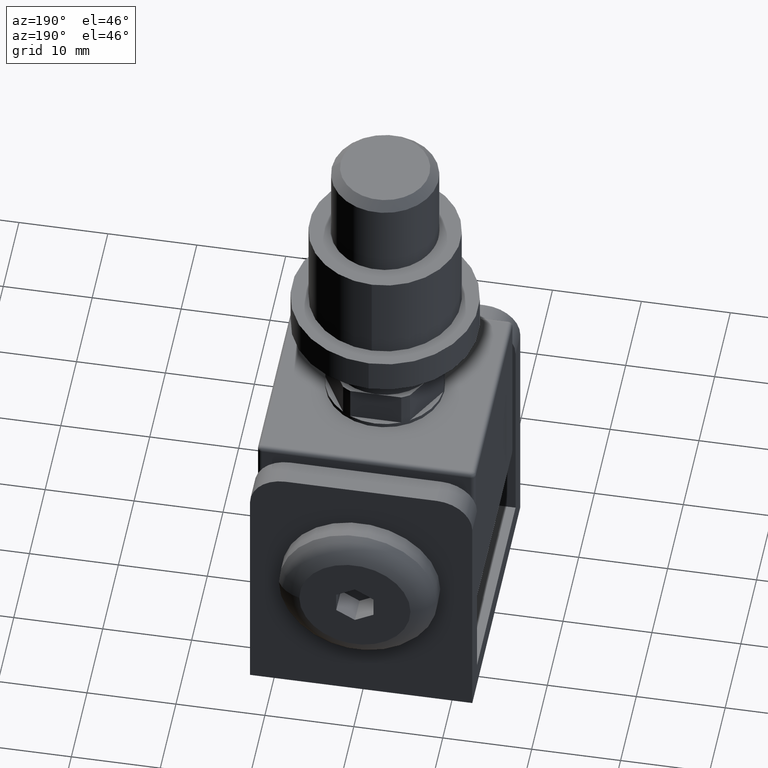
[diagram: clean part render]
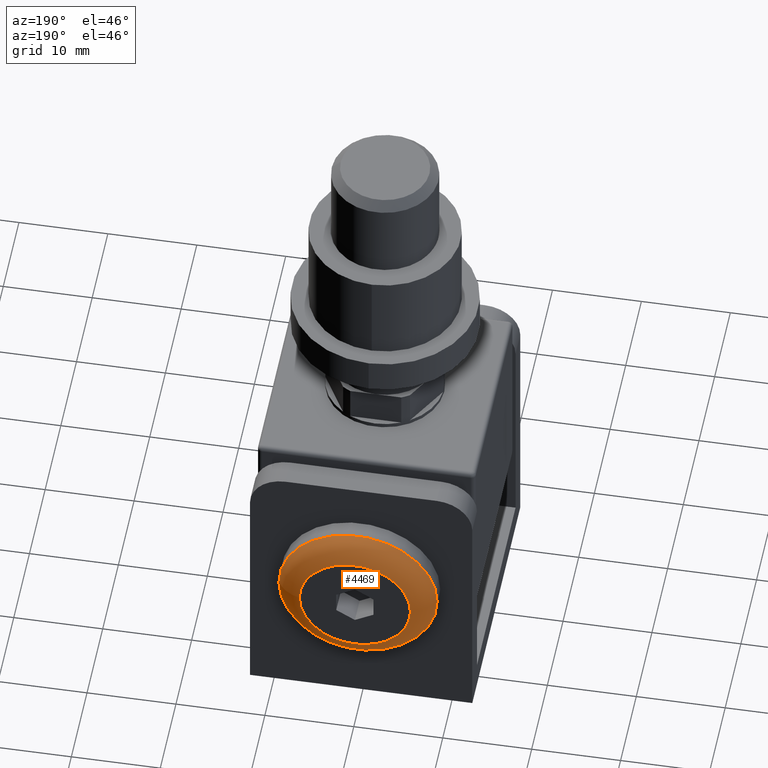
[diagram: same view with one face highlighted and labeled with its STEP entity id]
A machine part, auxiliary view. The second image highlights one B-rep face of the part: STEP entity #4469.
In plain terms, the highlighted toroidal blend (fillet) surface has major radius 5.3827 mm and minor (blend) radius 4 mm.
Its self-contained STEP definition (entity closure, byte-faithful):
#668 = DIRECTION ( 'NONE',  ( 0.000000000000000000, 0.000000000000000000, -1.000000000000000000 ) ) ;
#779 = CARTESIAN_POINT ( 'NONE',  ( 3.469446951953614189E-15, 14.19516442541837797, 1.155557966632341512E-30 ) ) ;
#1201 = EDGE_CURVE ( 'NONE', #3019, #3019, #12710, .T. ) ;
#1800 = CARTESIAN_POINT ( 'NONE',  ( 3.252606517456513302E-15, 16.10000000000000853, 9.629649721936179265E-31 ) ) ;
#2020 = CARTESIAN_POINT ( 'NONE',  ( 3.252606517456513302E-15, 18.10000000000001208, 1.155557966632341512E-30 ) ) ;
#2294 = VERTEX_POINT ( 'NONE', #3989 ) ;
#3019 = VERTEX_POINT ( 'NONE', #12419 ) ;
#3989 = CARTESIAN_POINT ( 'NONE',  ( 3.252606517456513302E-15, 18.10000000000001208, -6.249999999999978684 ) ) ;
#4175 = TOROIDAL_SURFACE ( 'NONE', #7690, 5.382671264466694971, 4.000000000000000000 ) ;
#4460 = FACE_OUTER_BOUND ( 'NONE', #10378, .T. ) ;
#4469 = ADVANCED_FACE ( 'NONE', ( #4460, #10321 ), #4175, .T. ) ;
#5328 = DIRECTION ( 'NONE',  ( 2.128152588547895618E-31, -1.000000000000000000, -8.011868568650901149E-32 ) ) ;
#6198 = EDGE_CURVE ( 'NONE', #2294, #2294, #12915, .T. ) ;
#6722 = AXIS2_PLACEMENT_3D ( 'NONE', #2020, #5328, #6891 ) ;
#6891 = DIRECTION ( 'NONE',  ( 0.000000000000000000, 0.000000000000000000, -1.000000000000000000 ) ) ;
#7690 = AXIS2_PLACEMENT_3D ( 'NONE', #779, #8876, #10090 ) ;
#7774 = DIRECTION ( 'NONE',  ( 2.128152588547895618E-31, -1.000000000000000000, -8.011868568650901149E-32 ) ) ;
#8876 = DIRECTION ( 'NONE',  ( 2.128152588547895618E-31, -1.000000000000000000, -8.011868568650901149E-32 ) ) ;
#10090 = DIRECTION ( 'NONE',  ( -1.705047883347994078E-62, 8.011868568650901149E-32, -1.000000000000000000 ) ) ;
#10321 = FACE_OUTER_BOUND ( 'NONE', #13173, .T. ) ;
#10378 = EDGE_LOOP ( 'NONE', ( #11610 ) ) ;
#11610 = ORIENTED_EDGE ( 'NONE', *, *, #6198, .T. ) ;
#12011 = AXIS2_PLACEMENT_3D ( 'NONE', #1800, #7774, #668 ) ;
#12419 = CARTESIAN_POINT ( 'NONE',  ( 3.252606517456513302E-15, 16.10000000000000853, -8.899999999999971934 ) ) ;
#12710 = CIRCLE ( 'NONE', #12011, 8.899999999999971934 ) ;
#12915 = CIRCLE ( 'NONE', #6722, 6.249999999999978684 ) ;
#13173 = EDGE_LOOP ( 'NONE', ( #13212 ) ) ;
#13212 = ORIENTED_EDGE ( 'NONE', *, *, #1201, .F. ) ;